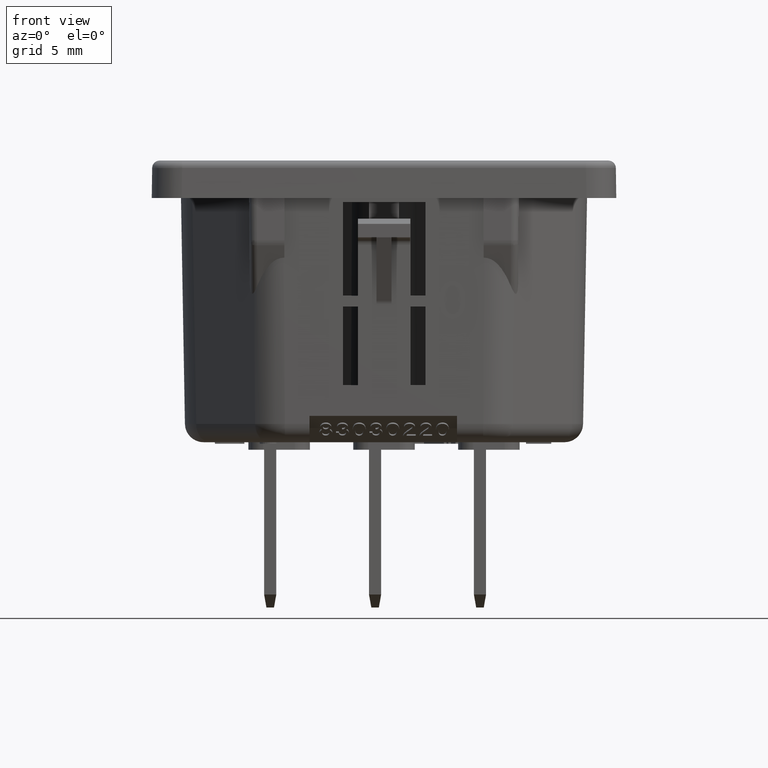
[diagram: clean part render]
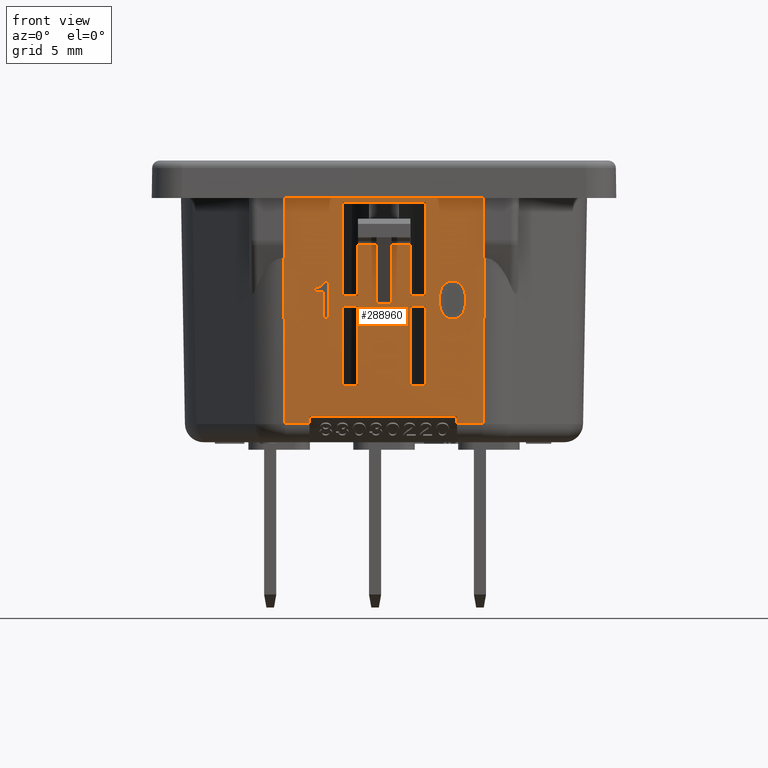
[diagram: same view with one face highlighted and labeled with its STEP entity id]
A machine part, front view. The second image highlights one B-rep face of the part: STEP entity #288960.
In plain terms, the highlighted planar face has unit normal (0, -0.9998, -0.0175).
Its self-contained STEP definition (entity closure, byte-faithful):
#29000=CARTESIAN_POINT('',(6.87138551330039,-0.0479941154363516,
9.07859570392953));
#29010=DIRECTION('',(-0.00749793555627765,0.999819589538164,
0.0174519150275998));
#29020=VECTOR('',#29010,1.);
#29030=LINE('',#29000,#29020);
#29040=CARTESIAN_POINT('',(6.78173497931519,11.9065444929835,
9.28726294167057));
#29050=VERTEX_POINT('',#29040);
#29060=CARTESIAN_POINT('',(6.6985651438478,22.9969079850167,
9.48084594735818));
#29070=VERTEX_POINT('',#29060);
#29080=EDGE_CURVE('',#29050,#29070,#29030,.T.);
#33220=CARTESIAN_POINT('',(6.74229300000001,22.9969079851629,
9.48084594736074));
#33230=VERTEX_POINT('',#33220);
#33470=CARTESIAN_POINT('',(6.74229300000001,26.97836,9.55034244750583));
#33480=VERTEX_POINT('',#33470);
#33510=CARTESIAN_POINT('',(6.74229300000001,0.,9.07943344429107));
#33520=DIRECTION('',(0.,0.999847695170775,0.0174524056132188));
#33530=VECTOR('',#33520,1.);
#33540=LINE('',#33510,#33530);
#33550=EDGE_CURVE('',#33230,#33480,#33540,.T.);
#49210=CARTESIAN_POINT('',(11.6446929983374,29.97836,9.60270763981715));
#49220=DIRECTION('',(-2.022048079185E-11,-0.999847695170775,
-0.0174524056132188));
#49230=VECTOR('',#49220,1.);
#49240=LINE('',#49210,#49230);
#49250=CARTESIAN_POINT('',(11.6446929981301,19.7283599995022,
9.42379323274476));
#49260=VERTEX_POINT('',#49250);
#49270=CARTESIAN_POINT('',(11.6446929980239,14.47836,9.33215414620862));
#49280=VERTEX_POINT('',#49270);
#49290=EDGE_CURVE('',#49260,#49280,#49240,.T.);
#61040=CARTESIAN_POINT('',(18.269693,12.4370572006822,9.29652307499131))
;
#61050=VERTEX_POINT('',#61040);
#61080=CARTESIAN_POINT('',(18.269693,0.,9.07943344429107));
#61090=DIRECTION('',(0.,0.999847695170775,0.0174524056132188));
#61100=VECTOR('',#61090,1.);
#61110=LINE('',#61080,#61100);
#61120=CARTESIAN_POINT('',(18.269693,11.9065444929835,9.28726294167057))
;
#61130=VERTEX_POINT('',#61120);
#61140=EDGE_CURVE('',#61130,#61050,#61110,.T.);
#62040=CARTESIAN_POINT('',(20.0076510206848,11.9065444929835,
9.28726294167057));
#62050=VERTEX_POINT('',#62040);
#62270=CARTESIAN_POINT('',(8.419693,0.,9.07943344429107));
#62280=DIRECTION('',(0.,0.999847695170775,0.0174524056132188));
#62290=VECTOR('',#62280,1.);
#62300=LINE('',#62270,#62290);
#62310=CARTESIAN_POINT('',(8.419693,11.9065444929835,9.28726294167057));
#62320=VERTEX_POINT('',#62310);
#62330=CARTESIAN_POINT('',(8.419693,12.4370572006822,9.29652307499131));
#62340=VERTEX_POINT('',#62330);
#62350=EDGE_CURVE('',#62320,#62340,#62300,.T.);
#63390=CARTESIAN_POINT('',(20.047092848351,26.97836,9.55034244750583));
#63400=VERTEX_POINT('',#63390);
#63430=CARTESIAN_POINT('',(0.,26.97836,9.55034244750583));
#63440=DIRECTION('',(-1.,0.,0.));
#63450=VECTOR('',#63440,1.);
#63460=LINE('',#63430,#63450);
#63470=EDGE_CURVE('',#63400,#33480,#63460,.T.);
#65490=CARTESIAN_POINT('',(0.,11.9065444929835,9.28726294167057));
#65500=DIRECTION('',(1.,0.,0.));
#65510=VECTOR('',#65500,1.);
#65520=LINE('',#65490,#65510);
#65530=EDGE_CURVE('',#61130,#62050,#65520,.T.);
#67200=EDGE_CURVE('',#29050,#62320,#65520,.T.);
#67370=CARTESIAN_POINT('',(16.1446929981301,19.7283599942885,
9.42379323265375));
#67380=VERTEX_POINT('',#67370);
#67530=CARTESIAN_POINT('',(15.1446929981301,19.7283599954471,
9.42379323267398));
#67540=VERTEX_POINT('',#67530);
#67570=CARTESIAN_POINT('',(40.392439779246,19.7283599661948,
9.42379323216338));
#67580=DIRECTION('',(-1.,1.15860723781929E-9,2.02235636072347E-11));
#67590=VECTOR('',#67580,1.);
#67600=LINE('',#67570,#67590);
#67610=EDGE_CURVE('',#67380,#67540,#67600,.T.);
#67790=CARTESIAN_POINT('',(0.,12.4370572006822,9.29652307499131));
#67800=DIRECTION('',(-1.,0.,0.));
#67810=VECTOR('',#67800,1.);
#67820=LINE('',#67790,#67810);
#67830=EDGE_CURVE('',#61050,#62340,#67820,.T.);
#76550=CARTESIAN_POINT('',(40.3924397791398,14.4783600000001,
9.33215414620863));
#76560=DIRECTION('',(1.,3.46944695195728E-15,6.05594190000325E-17));
#76570=VECTOR('',#76560,1.);
#76580=LINE('',#76550,#76570);
#76590=CARTESIAN_POINT('',(15.1446929980239,14.47836,9.33215414620862));
#76600=VERTEX_POINT('',#76590);
#76610=CARTESIAN_POINT('',(16.1446929980239,14.47836,9.33215414620862));
#76620=VERTEX_POINT('',#76610);
#76630=EDGE_CURVE('',#76600,#76620,#76580,.T.);
#77040=CARTESIAN_POINT('',(0.,22.9969079626194,9.48084594696724));
#77050=DIRECTION('',(1.,3.34359885149224E-9,5.83627322901094E-11));
#77060=VECTOR('',#77050,1.);
#77070=LINE('',#77040,#77060);
#77080=EDGE_CURVE('',#29070,#33230,#77070,.T.);
#77510=CARTESIAN_POINT('',(19.9180004866996,-0.0479941154363516,
9.07859570392953));
#77520=DIRECTION('',(0.00749793555627765,0.999819589538164,
0.0174519150275998));
#77530=VECTOR('',#77520,1.);
#77540=LINE('',#77510,#77530);
#77550=CARTESIAN_POINT('',(20.0908208561522,22.9969079850167,
9.48084594735818));
#77560=VERTEX_POINT('',#77550);
#77570=EDGE_CURVE('',#62050,#77560,#77540,.T.);
#78240=CARTESIAN_POINT('',(10.6446929980239,14.47836,9.33215414620862));
#78250=VERTEX_POINT('',#78240);
#78280=CARTESIAN_POINT('',(10.6446929983374,29.97836,9.60270763981716));
#78290=DIRECTION('',(2.0220775694841E-11,0.999847695170775,
0.0174524056132188));
#78300=VECTOR('',#78290,1.);
#78310=LINE('',#78280,#78300);
#78320=CARTESIAN_POINT('',(10.6446929981301,19.7283600006608,
9.42379323276498));
#78330=VERTEX_POINT('',#78320);
#78340=EDGE_CURVE('',#78250,#78330,#78310,.T.);
#205630=CARTESIAN_POINT('',(13.894692999399,19.9139644380714,
9.42703297011793));
#205640=VERTEX_POINT('',#205630);
#205900=CARTESIAN_POINT('',(13.894692999399,23.8570862028066,
9.49586041329038));
#205910=VERTEX_POINT('',#205900);
#205940=CARTESIAN_POINT('',(13.894692999399,0.,9.07943344429107));
#205950=DIRECTION('',(0.,0.999847695170775,0.0174524056132188));
#205960=VECTOR('',#205950,1.);
#205970=LINE('',#205940,#205960);
#205980=EDGE_CURVE('',#205640,#205910,#205970,.T.);
#206880=EDGE_CURVE('',#49260,#78330,#67600,.T.);
#258070=CARTESIAN_POINT('',(17.5709430013059,21.3492563936078,
9.45208608320945));
#258080=VERTEX_POINT('',#258070);
#258110=CARTESIAN_POINT('',(0.,14.3208792165582,9.32940530903853));
#258120=DIRECTION('',(-0.92845718243873,-0.371382871735178,
-0.00648251183318201));
#258130=VECTOR('',#258120,1.);
#258140=LINE('',#258110,#258130);
#258150=CARTESIAN_POINT('',(17.729693001379,21.4127563934249,
9.45319447977685));
#258160=VERTEX_POINT('',#258150);
#258170=EDGE_CURVE('',#258160,#258080,#258140,.T.);
#258460=CARTESIAN_POINT('',(15.1446929996903,20.4483599954471,
9.4363608788287));
#258470=VERTEX_POINT('',#258460);
#258500=CARTESIAN_POINT('',(15.1446929996903,0.,9.07943344429107));
#258510=DIRECTION('',(0.,0.999847695170775,0.0174524056132188));
#258520=VECTOR('',#258510,1.);
#258530=LINE('',#258500,#258520);
#258540=CARTESIAN_POINT('',(15.1446929996903,23.8570862028066,
9.49586041329038));
#258550=VERTEX_POINT('',#258540);
#258560=EDGE_CURVE('',#258470,#258550,#258530,.T.);
#260020=CARTESIAN_POINT('',(17.4756929986575,19.0632563936716,
9.41218380666933));
#260030=VERTEX_POINT('',#260020);
#260060=CARTESIAN_POINT('',(36.5389493477699,0.,9.07943344429107));
#260070=DIRECTION('',(0.70705292631986,-0.707052927972554,
-0.0123416541825235));
#260080=VECTOR('',#260070,1.);
#260090=LINE('',#260060,#260080);
#260100=CARTESIAN_POINT('',(17.3804429987676,19.1585063937842,
9.41384640152718));
#260110=VERTEX_POINT('',#260100);
#260120=EDGE_CURVE('',#260110,#260030,#260090,.T.);
#260420=CARTESIAN_POINT('',(17.7296929985098,18.9362563933751,
9.40996701352298));
#260430=VERTEX_POINT('',#260420);
#260460=CARTESIAN_POINT('',(0.,26.0281336167508,9.53375618507311));
#260470=DIRECTION('',(0.928457181577933,-0.371382873886515,
-0.00648251187073371));
#260480=VECTOR('',#260470,1.);
#260490=LINE('',#260460,#260480);
#260500=CARTESIAN_POINT('',(17.5709429985835,18.9997563935603,
9.4110754100968));
#260510=VERTEX_POINT('',#260500);
#260520=EDGE_CURVE('',#260510,#260430,#260490,.T.);
#260820=CARTESIAN_POINT('',(18.0789429984733,18.9045063929697,
9.40941281523061));
#260830=VERTEX_POINT('',#260820);
#260860=CARTESIAN_POINT('',(0.,18.9045064139161,9.40941281559623));
#260870=DIRECTION('',(1.,-1.15860723784272E-9,-2.02235636076437E-11));
#260880=VECTOR('',#260870,1.);
#260890=LINE('',#260860,#260880);
#260900=CARTESIAN_POINT('',(17.8566929984736,18.9045063932272,
9.4094128152351));
#260910=VERTEX_POINT('',#260900);
#260920=EDGE_CURVE('',#260910,#260830,#260890,.T.);
#261390=CARTESIAN_POINT('',(18.2059429985099,18.9362563928231,
9.40996701351335));
#261400=VERTEX_POINT('',#261390);
#261430=CARTESIAN_POINT('',(0.,14.3847706655155,9.33052053837577));
#261440=DIRECTION('',(0.970133806945002,0.242533450546902,
0.00423343692660621));
#261450=VECTOR('',#261440,1.);
#261460=LINE('',#261430,#261450);
#261470=EDGE_CURVE('',#260830,#261400,#261460,.T.);
#261700=CARTESIAN_POINT('',(17.1264430004227,20.5872563941056,
9.43878532437107));
#261710=VERTEX_POINT('',#261700);
#261740=CARTESIAN_POINT('',(13.6952335769594,0.,9.07943344429108));
#261750=DIRECTION('',(-0.164374626257937,-0.986247750521081,
-0.0172150177075505));
#261760=VECTOR('',#261750,1.);
#261770=LINE('',#261740,#261760);
#261780=CARTESIAN_POINT('',(17.1581930006437,20.7777563940744,
9.44211051408229));
#261790=VERTEX_POINT('',#261780);
#261800=EDGE_CURVE('',#261790,#261710,#261770,.T.);
#262100=CARTESIAN_POINT('',(17.1581929992458,19.57125639405,
9.42105097924066));
#262110=VERTEX_POINT('',#262100);
#262140=CARTESIAN_POINT('',(20.4200690415495,0.,9.07943344429107));
#262150=DIRECTION('',(0.164374623972571,-0.986247750901859,
-0.0172150177141971));
#262160=VECTOR('',#262150,1.);
#262170=LINE('',#262140,#262160);
#262180=CARTESIAN_POINT('',(17.1264429994666,19.7617563940901,
9.42437616895313));
#262190=VERTEX_POINT('',#262180);
#262200=EDGE_CURVE('',#262190,#262110,#262170,.T.);
#262500=CARTESIAN_POINT('',(17.0946929997976,20.0475063941331,
9.42936395352153));
#262510=VERTEX_POINT('',#262500);
#262540=CARTESIAN_POINT('',(17.0946929765704,0.,9.07943344429107));
#262550=DIRECTION('',(-1.15843077665156E-9,-0.999847695170775,
-0.0174524056132188));
#262560=VECTOR('',#262550,1.);
#262570=LINE('',#262540,#262560);
#262580=CARTESIAN_POINT('',(17.0946930000919,20.301506394139,
9.43379753980399));
#262590=VERTEX_POINT('',#262580);
#262600=EDGE_CURVE('',#262590,#262510,#262570,.T.);
#263250=CARTESIAN_POINT('',(17.2851929989148,19.285506393897,
9.41606319467033));
#263260=VERTEX_POINT('',#263250);
#263290=CARTESIAN_POINT('',(26.9279461677379,0.,9.07943344429108));
#263300=DIRECTION('',(0.447159101734528,-0.894318206077549,
-0.0156103816162577));
#263310=VECTOR('',#263300,1.);
#263320=LINE('',#263290,#263310);
#263330=CARTESIAN_POINT('',(17.2216929990618,19.4125063939733,
9.41827998781284));
#263340=VERTEX_POINT('',#263330);
#263350=EDGE_CURVE('',#263340,#263260,#263320,.T.);
#263650=CARTESIAN_POINT('',(17.221693000828,20.9365063940048,
9.44488150550755));
#263660=VERTEX_POINT('',#263650);
#263690=CARTESIAN_POINT('',(6.75343977371565,0.,9.07943344429107));
#263700=DIRECTION('',(-0.447159103806985,-0.894318205041636,
-0.0156103815981758));
#263710=VECTOR('',#263700,1.);
#263720=LINE('',#263690,#263710);
#263730=CARTESIAN_POINT('',(17.2851930009745,21.0635063939326,
9.44709829864747));
#263740=VERTEX_POINT('',#263730);
#263750=EDGE_CURVE('',#263740,#263660,#263720,.T.);
#264050=CARTESIAN_POINT('',(17.380443001122,21.1905063938253,
9.44931509178677));
#264060=VERTEX_POINT('',#264050);
#264090=CARTESIAN_POINT('',(0.,3.81006343262599,9.14593834574702));
#264100=DIRECTION('',(-0.707052927958503,-0.70705292633441,
-0.0123416541539296));
#264110=VECTOR('',#264100,1.);
#264120=LINE('',#264090,#264110);
#264130=CARTESIAN_POINT('',(17.4756930012324,21.2857563937169,
9.45097768664077));
#264140=VERTEX_POINT('',#264130);
#264150=EDGE_CURVE('',#264140,#264060,#264120,.T.);
#264450=CARTESIAN_POINT('',(17.8566930014162,21.4445063932785,
9.45374867805959));
#264460=VERTEX_POINT('',#264450);
#264490=CARTESIAN_POINT('',(0.,21.4445064139674,9.45374867842072));
#264500=DIRECTION('',(-1.,1.15860723784272E-9,2.02235636076437E-11));
#264510=VECTOR('',#264500,1.);
#264520=LINE('',#264490,#264510);
#264530=CARTESIAN_POINT('',(18.0789430014164,21.444506393021,
9.4537486780551));
#264540=VERTEX_POINT('',#264530);
#264550=EDGE_CURVE('',#264540,#264460,#264520,.T.);
#264780=CARTESIAN_POINT('',(10.6446929981447,20.4483600006608,
9.4363608789197));
#264790=VERTEX_POINT('',#264780);
#264820=CARTESIAN_POINT('',(10.6446929982711,26.69836,9.54545502955677))
;
#264830=VERTEX_POINT('',#264820);
#264840=EDGE_CURVE('',#264790,#264830,#78310,.T.);
#267460=CARTESIAN_POINT('',(40.392439779387,26.69836,9.54545502955677));
#267470=DIRECTION('',(-1.,7.88510671416449E-17,1.37635037072035E-18));
#267480=VECTOR('',#267470,1.);
#267490=LINE('',#267460,#267480);
#267500=CARTESIAN_POINT('',(16.1446929982711,26.69836,9.54545502955677))
;
#267510=VERTEX_POINT('',#267500);
#267520=EDGE_CURVE('',#267510,#264830,#267490,.T.);
#268060=CARTESIAN_POINT('',(11.6446929987702,23.8570862028066,
9.49586041329038));
#268070=VERTEX_POINT('',#268060);
#268120=CARTESIAN_POINT('',(11.6446929987702,0.,9.07943344429107));
#268130=DIRECTION('',(0.,0.999847695170775,0.0174524056132188));
#268140=VECTOR('',#268130,1.);
#268150=LINE('',#268120,#268140);
#268160=CARTESIAN_POINT('',(11.6446929987702,20.4483599995022,
9.43636087889948));
#268170=VERTEX_POINT('',#268160);
#268180=EDGE_CURVE('',#268170,#268070,#268150,.T.);
#269100=CARTESIAN_POINT('',(12.8946929998295,19.9139644380714,
9.42703297011793));
#269110=VERTEX_POINT('',#269100);
#269160=CARTESIAN_POINT('',(12.8946929998295,0.,9.07943344429107));
#269170=DIRECTION('',(0.,0.999847695170775,0.0174524056132188));
#269180=VECTOR('',#269170,1.);
#269190=LINE('',#269160,#269180);
#269200=CARTESIAN_POINT('',(12.8946929998295,23.8570862028066,
9.49586041329038));
#269210=VERTEX_POINT('',#269200);
#269220=EDGE_CURVE('',#269110,#269210,#269190,.T.);
#269630=CARTESIAN_POINT('',(14.8389700436436,0.,9.07943344429108));
#269640=DIRECTION('',(-0.11041491303585,-0.993734206852685,
-0.0173456942827288));
#269650=VECTOR('',#269640,1.);
#269660=LINE('',#269630,#269650);
#269670=EDGE_CURVE('',#261710,#262590,#269660,.T.);
#269850=CARTESIAN_POINT('',(19.3221936866979,0.,9.07943344429107));
#269860=DIRECTION('',(0.110414910733146,-0.993734207108464,
-0.0173456942871934));
#269870=VECTOR('',#269860,1.);
#269880=LINE('',#269850,#269870);
#269890=EDGE_CURVE('',#262510,#262190,#269880,.T.);
#270070=CARTESIAN_POINT('',(31.749322759132,0.,9.07943344429107));
#270080=DIRECTION('',(0.599941509200639,-0.79992201421452,
-0.0139626900361362));
#270090=VECTOR('',#270080,1.);
#270100=LINE('',#270070,#270090);
#270110=EDGE_CURVE('',#263260,#260110,#270100,.T.);
#270340=CARTESIAN_POINT('',(18.6504430009748,21.0635063923512,
9.44709829861986));
#270350=VERTEX_POINT('',#270340);
#270380=CARTESIAN_POINT('',(29.182196166432,0.,9.07943344429107));
#270390=DIRECTION('',(-0.447159101734527,0.894318206077549,
0.0156103816162577));
#270400=VECTOR('',#270390,1.);
#270410=LINE('',#270380,#270400);
#270420=CARTESIAN_POINT('',(18.7139430008277,20.9365063922749,
9.44488150547735));
#270430=VERTEX_POINT('',#270420);
#270440=EDGE_CURVE('',#270430,#270350,#270410,.T.);
#270690=CARTESIAN_POINT('',(0.,9.63529442190612,9.2476181260842));
#270700=DIRECTION('',(-0.832011296414313,-0.554674196228347,
-0.00968187365187631));
#270710=VECTOR('',#270700,1.);
#270720=LINE('',#270690,#270710);
#270730=EDGE_CURVE('',#258080,#264140,#270720,.T.);
#270960=CARTESIAN_POINT('',(18.364693001306,21.3492563926879,
9.4520860831934));
#270970=VERTEX_POINT('',#270960);
#271000=CARTESIAN_POINT('',(0.,33.5923850912069,9.66579067945683));
#271010=DIRECTION('',(-0.832011295128743,0.554674198156115,
0.00968187368552562));
#271020=VECTOR('',#271010,1.);
#271030=LINE('',#271000,#271020);
#271040=CARTESIAN_POINT('',(18.4599430012323,21.2857563925764,
9.45097768662086));
#271050=VERTEX_POINT('',#271040);
#271060=EDGE_CURVE('',#271050,#270970,#271030,.T.);
#271310=CARTESIAN_POINT('',(0.,25.9642421657219,9.53264095569972));
#271320=DIRECTION('',(-0.970133806382841,0.242533452794861,
0.00423343696584445));
#271330=VECTOR('',#271320,1.);
#271340=LINE('',#271310,#271330);
#271350=CARTESIAN_POINT('',(18.2059430013789,21.4127563928734,
9.45319447976722));
#271360=VERTEX_POINT('',#271350);
#271370=EDGE_CURVE('',#271360,#264540,#271340,.T.);
#271620=CARTESIAN_POINT('',(0.,16.9803331648163,9.37582624818642));
#271630=DIRECTION('',(-0.970133806945004,-0.242533450546893,
-0.00423343692660604));
#271640=VECTOR('',#271630,1.);
#271650=LINE('',#271620,#271640);
#271660=EDGE_CURVE('',#264460,#258160,#271650,.T.);
#271840=CARTESIAN_POINT('',(27.08854552943,0.,9.07943344429108));
#271850=DIRECTION('',(-0.371341911154801,0.928354781025009,
0.0162044922138386));
#271860=VECTOR('',#271850,1.);
#271870=LINE('',#271840,#271860);
#271880=CARTESIAN_POINT('',(18.7774430006436,20.7777563921986,
9.44211051404955));
#271890=VERTEX_POINT('',#271880);
#271900=EDGE_CURVE('',#271890,#270430,#271870,.T.);
#272200=CARTESIAN_POINT('',(18.5551929987679,19.1585063924233,
9.41384640150343));
#272210=VERTEX_POINT('',#272200);
#272240=CARTESIAN_POINT('',(0.,0.603313436276508,9.08996431899595));
#272250=DIRECTION('',(0.707052927958502,0.707052926334411,
0.0123416541539297));
#272260=VECTOR('',#272250,1.);
#272270=LINE('',#272240,#272260);
#272280=CARTESIAN_POINT('',(18.4599429986571,19.0632563925314,
9.41218380664943));
#272290=VERTEX_POINT('',#272280);
#272300=EDGE_CURVE('',#272290,#272210,#272270,.T.);
#272600=CARTESIAN_POINT('',(18.6504429989146,19.285506392315,
9.41606319464272));
#272610=VERTEX_POINT('',#272600);
#272640=CARTESIAN_POINT('',(4.1863131700578,0.,9.07943344429108));
#272650=DIRECTION('',(0.599941511054434,0.799922012824597,
0.013962690011875));
#272660=VECTOR('',#272650,1.);
#272670=LINE('',#272640,#272660);
#272680=EDGE_CURVE('',#272210,#272610,#272670,.T.);
#272860=CARTESIAN_POINT('',(0.,6.75662775740463,9.19737081492193));
#272870=DIRECTION('',(0.832011296414311,0.55467419622835,
0.00968187365187636));
#272880=VECTOR('',#272870,1.);
#272890=LINE('',#272860,#272880);
#272900=CARTESIAN_POINT('',(18.3646929985838,18.9997563926406,
9.41107541008075));
#272910=VERTEX_POINT('',#272900);
#272920=EDGE_CURVE('',#272910,#272290,#272890,.T.);
#273220=CARTESIAN_POINT('',(18.5551930011219,21.1905063924642,
9.44931509176302));
#273230=VERTEX_POINT('',#273220);
#273260=CARTESIAN_POINT('',(34.4480727567869,0.,9.07943344429108));
#273270=DIRECTION('',(-0.599941509200639,0.79992201421452,
0.0139626900361362));
#273280=VECTOR('',#273270,1.);
#273290=LINE('',#273260,#273280);
#273300=EDGE_CURVE('',#270350,#273230,#273290,.T.);
#273480=CARTESIAN_POINT('',(0.,11.6538792177404,9.2828526530944));
#273490=DIRECTION('',(0.928457182438733,0.371382871735171,
0.00648251183318187));
#273500=VECTOR('',#273490,1.);
#273510=LINE('',#273480,#273500);
#273520=EDGE_CURVE('',#261400,#272910,#273510,.T.);
#273700=CARTESIAN_POINT('',(0.,23.3686796649178,9.48733524586283));
#273710=DIRECTION('',(0.970133806382838,-0.242533452794871,
-0.00423343696584463));
#273720=VECTOR('',#273710,1.);
#273730=LINE('',#273700,#273720);
#273740=EDGE_CURVE('',#260430,#260910,#273730,.T.);
#273920=CARTESIAN_POINT('',(1.48756316771282,0.,9.07943344429107));
#273930=DIRECTION('',(-0.599941511054431,-0.799922012824599,
-0.013962690011875));
#273940=VECTOR('',#273930,1.);
#273950=LINE('',#273920,#273940);
#273960=EDGE_CURVE('',#264060,#263740,#273950,.T.);
#274140=CARTESIAN_POINT('',(8.84709041525707,0.,9.07943344429108));
#274150=DIRECTION('',(-0.371341913306086,-0.928354780164756,
-0.0162044921988229));
#274160=VECTOR('',#274150,1.);
#274170=LINE('',#274140,#274160);
#274180=EDGE_CURVE('',#263660,#261790,#274170,.T.);
#274360=CARTESIAN_POINT('',(0.,30.7137184222585,9.61554336821693));
#274370=DIRECTION('',(0.832011295128741,-0.554674198156118,
-0.00968187368552565));
#274380=VECTOR('',#274370,1.);
#274390=LINE('',#274360,#274380);
#274400=EDGE_CURVE('',#260030,#260510,#274390,.T.);
#274580=CARTESIAN_POINT('',(24.986695530404,0.,9.07943344429107));
#274590=DIRECTION('',(0.371341911154798,-0.92835478102501,
-0.0162044922138386));
#274600=VECTOR('',#274590,1.);
#274610=LINE('',#274580,#274600);
#274620=EDGE_CURVE('',#262110,#263340,#274610,.T.);
#274910=CARTESIAN_POINT('',(20.047092848351,22.9969079851629,
9.48084594736074));
#274920=VERTEX_POINT('',#274910);
#274950=CARTESIAN_POINT('',(20.047092848351,0.,9.07943344429107));
#274960=DIRECTION('',(0.,0.999847695170775,0.0174524056132188));
#274970=VECTOR('',#274960,1.);
#274980=LINE('',#274950,#274970);
#274990=EDGE_CURVE('',#274920,#63400,#274980,.T.);
#275150=CARTESIAN_POINT('',(9.31369300291716,21.2222563962809,
9.44986929011493));
#275160=VERTEX_POINT('',#275150);
#275310=CARTESIAN_POINT('',(9.21844300280669,21.1270063963892,
9.44820669526094));
#275320=VERTEX_POINT('',#275310);
#275350=CARTESIAN_POINT('',(0.,11.9085634147572,9.28729818207955));
#275360=DIRECTION('',(-0.707052927958505,-0.707052926334408,
-0.0123416541539296));
#275370=VECTOR('',#275360,1.);
#275380=LINE('',#275350,#275370);
#275390=EDGE_CURVE('',#275160,#275320,#275380,.T.);
#275620=CARTESIAN_POINT('',(9.09144300273327,21.0635063965351,
9.44709829869289));
#275630=VERTEX_POINT('',#275620);
#275660=CARTESIAN_POINT('',(0.,16.5177849082433,9.36775243871685));
#275670=DIRECTION('',(-0.894399941418202,-0.447199969422825,
-0.00780590413348214));
#275680=VECTOR('',#275670,1.);
#275690=LINE('',#275660,#275680);
#275700=EDGE_CURVE('',#275320,#275630,#275690,.T.);
#275930=CARTESIAN_POINT('',(8.99619300269636,21.0317563966448,
9.44654410040951));
#275940=VERTEX_POINT('',#275930);
#275970=CARTESIAN_POINT('',(0.,18.0330254072666,9.39420105875994));
#275980=DIRECTION('',(-0.948668846538915,-0.316222947631436,
-0.00551969182199178));
#275990=VECTOR('',#275980,1.);
#276000=LINE('',#275970,#275990);
#276010=EDGE_CURVE('',#275630,#275940,#276000,.T.);
#276120=CARTESIAN_POINT('',(22.2404023745313,0.,9.07943344429107));
#276130=DIRECTION('',(-0.16437462397257,0.986247750901859,
0.0172150177141971));
#276140=VECTOR('',#276130,1.);
#276150=LINE('',#276120,#276140);
#276160=CARTESIAN_POINT('',(18.8091930004232,20.5872563921561,
9.43878532433704));
#276170=VERTEX_POINT('',#276160);
#276180=EDGE_CURVE('',#276170,#271890,#276150,.T.);
#278250=CARTESIAN_POINT('',(9.37719300236533,20.7460063961976,
9.44155631583405));
#278260=VERTEX_POINT('',#278250);
#278290=CARTESIAN_POINT('',(0.,20.7460064070621,9.44155631602369));
#278300=DIRECTION('',(1.,-1.15860723784272E-9,-2.02235636076437E-11));
#278310=VECTOR('',#278300,1.);
#278320=LINE('',#278290,#278310);
#278330=CARTESIAN_POINT('',(8.77394300236532,20.7460063968965,
9.44155631584625));
#278340=VERTEX_POINT('',#278330);
#278350=EDGE_CURVE('',#278340,#278260,#278320,.T.);
#278510=CARTESIAN_POINT('',(8.77394297832885,0.,9.07943344429107));
#278520=DIRECTION('',(-1.15843077665156E-9,-0.999847695170775,
-0.0174524056132188));
#278530=VECTOR('',#278520,1.);
#278540=LINE('',#278510,#278530);
#278550=CARTESIAN_POINT('',(8.77394300265961,21.0000063969017,
9.4459899021287));
#278560=VERTEX_POINT('',#278550);
#278570=EDGE_CURVE('',#278560,#278340,#278540,.T.);
#278950=CARTESIAN_POINT('',(8.83744300265953,21.0000063968281,
9.44598990212742));
#278960=VERTEX_POINT('',#278950);
#278990=CARTESIAN_POINT('',(0.,19.2325178069091,9.41513827548769));
#279000=DIRECTION('',(-0.980574930533373,-0.196114984929096,
-0.00342319963364848));
#279010=VECTOR('',#279000,1.);
#279020=LINE('',#278990,#279010);
#279030=EDGE_CURVE('',#275940,#278960,#279020,.T.);
#279130=CARTESIAN_POINT('',(0.,21.0000064070672,9.44598990230614));
#279140=DIRECTION('',(-1.,1.15860723784272E-9,2.02235636076437E-11));
#279150=VECTOR('',#279140,1.);
#279160=LINE('',#279130,#279150);
#279170=EDGE_CURVE('',#278960,#278560,#279160,.T.);
#279350=CARTESIAN_POINT('',(2.29252417700001,0.,9.07943344429107));
#279360=DIRECTION('',(-0.316184419405546,-0.948553254572484,
-0.0165570578644083));
#279370=VECTOR('',#279360,1.);
#279380=LINE('',#279350,#279370);
#279390=CARTESIAN_POINT('',(9.44069300317461,21.4445063961382,
9.45374867810951));
#279400=VERTEX_POINT('',#279390);
#279410=CARTESIAN_POINT('',(9.40894300306421,21.349256396173,
9.45208608325423));
#279420=VERTEX_POINT('',#279410);
#279430=EDGE_CURVE('',#279400,#279420,#279380,.T.);
#279830=CARTESIAN_POINT('',(-6.60299933239075,0.,9.07943344429108));
#279840=DIRECTION('',(-0.599941511054433,-0.799922012824598,
-0.013962690011875));
#279850=VECTOR('',#279840,1.);
#279860=LINE('',#279830,#279850);
#279870=EDGE_CURVE('',#279420,#275160,#279860,.T.);
#280040=CARTESIAN_POINT('',(0.,22.9969080521923,9.48084594853074));
#280050=DIRECTION('',(-1.,3.34359885149224E-9,5.83627322901094E-11));
#280060=VECTOR('',#280050,1.);
#280070=LINE('',#280040,#280060);
#280080=EDGE_CURVE('',#77560,#274920,#280070,.T.);
#285330=CARTESIAN_POINT('',(21.0966659086917,0.,9.07943344429107));
#285340=DIRECTION('',(-0.110414910733146,0.993734207108464,
0.0173456942871934));
#285350=VECTOR('',#285340,1.);
#285360=LINE('',#285330,#285350);
#285370=CARTESIAN_POINT('',(18.8409430000919,20.3015063921153,
9.43379753976867));
#285380=VERTEX_POINT('',#285370);
#285390=EDGE_CURVE('',#285380,#276170,#285360,.T.);
#285510=CARTESIAN_POINT('',(-1.85530699946041,11.7102118293765,
9.28383594244164));
#285520=DIRECTION('',(0.,-0.0174524056132188,0.999847695170775));
#285530=DIRECTION('',(3.23117426778526E-27,-0.999847695170775,
-0.0174524056132187));
#285540=AXIS2_PLACEMENT_3D('',#285510,#285520,#285530);
#285550=PLANE('',#285540);
#286870=CARTESIAN_POINT('',(0.,21.4445064070763,9.45374867830043));
#286880=DIRECTION('',(-1.,1.15860723784272E-9,2.02235636076437E-11));
#286890=VECTOR('',#286880,1.);
#286900=LINE('',#286870,#286890);
#286910=CARTESIAN_POINT('',(9.69469300317459,21.444506395844,
9.45374867810437));
#286920=VERTEX_POINT('',#286910);
#286930=EDGE_CURVE('',#286920,#279400,#286900,.T.);
#286940=ORIENTED_EDGE('',*,*,#286930,.F.);
#286950=ORIENTED_EDGE('',*,*,#279430,.F.);
#286960=ORIENTED_EDGE('',*,*,#279870,.F.);
#286970=ORIENTED_EDGE('',*,*,#275390,.F.);
#286980=ORIENTED_EDGE('',*,*,#275700,.F.);
#286990=ORIENTED_EDGE('',*,*,#276010,.F.);
#287000=ORIENTED_EDGE('',*,*,#279030,.F.);
#287010=ORIENTED_EDGE('',*,*,#279170,.F.);
#287020=ORIENTED_EDGE('',*,*,#278570,.F.);
#287030=ORIENTED_EDGE('',*,*,#278350,.F.);
#287040=CARTESIAN_POINT('',(9.37719297832885,0.,9.07943344429107));
#287050=DIRECTION('',(-1.15843077665156E-9,-0.999847695170775,
-0.0174524056132188));
#287060=VECTOR('',#287050,1.);
#287070=LINE('',#287040,#287060);
#287080=CARTESIAN_POINT('',(9.37719300023175,18.9045063961604,
9.4094128152863));
#287090=VERTEX_POINT('',#287080);
#287100=EDGE_CURVE('',#278260,#287090,#287070,.T.);
#287110=ORIENTED_EDGE('',*,*,#287100,.F.);
#287120=CARTESIAN_POINT('',(0.,18.9045064070249,9.40941281547594));
#287130=DIRECTION('',(1.,-1.15860723784272E-9,-2.02235636076437E-11));
#287140=VECTOR('',#287130,1.);
#287150=LINE('',#287120,#287140);
#287160=CARTESIAN_POINT('',(9.69469300023172,18.9045063957926,
9.40941281527988));
#287170=VERTEX_POINT('',#287160);
#287180=EDGE_CURVE('',#287090,#287170,#287150,.T.);
#287190=ORIENTED_EDGE('',*,*,#287180,.F.);
#287200=CARTESIAN_POINT('',(9.69469297832883,0.,9.07943344429107));
#287210=DIRECTION('',(1.15843077665156E-9,0.999847695170775,
0.0174524056132188));
#287220=VECTOR('',#287210,1.);
#287230=LINE('',#287200,#287220);
#287240=EDGE_CURVE('',#287170,#286920,#287230,.T.);
#287250=ORIENTED_EDGE('',*,*,#287240,.F.);
#287260=EDGE_LOOP('',(#287250,#287190,#287110,#287030,#287020,#287010,
#287000,#286990,#286980,#286970,#286960,#286950,#286940));
#287270=FACE_BOUND('',#287260,.T.);
#287280=ORIENTED_EDGE('',*,*,#269890,.F.);
#287290=ORIENTED_EDGE('',*,*,#262200,.F.);
#287300=ORIENTED_EDGE('',*,*,#274620,.F.);
#287310=ORIENTED_EDGE('',*,*,#263350,.F.);
#287320=ORIENTED_EDGE('',*,*,#270110,.F.);
#287330=ORIENTED_EDGE('',*,*,#260120,.F.);
#287340=ORIENTED_EDGE('',*,*,#274400,.F.);
#287350=ORIENTED_EDGE('',*,*,#260520,.F.);
#287360=ORIENTED_EDGE('',*,*,#273740,.F.);
#287370=ORIENTED_EDGE('',*,*,#260920,.F.);
#287380=ORIENTED_EDGE('',*,*,#261470,.F.);
#287390=ORIENTED_EDGE('',*,*,#273520,.F.);
#287400=ORIENTED_EDGE('',*,*,#272920,.F.);
#287410=ORIENTED_EDGE('',*,*,#272300,.F.);
#287420=ORIENTED_EDGE('',*,*,#272680,.F.);
#287430=CARTESIAN_POINT('',(9.00768977502175,0.,9.07943344429108));
#287440=DIRECTION('',(0.447159103806978,0.89431820504164,
0.0156103815981759));
#287450=VECTOR('',#287440,1.);
#287460=LINE('',#287430,#287450);
#287470=CARTESIAN_POINT('',(18.7139429990622,19.4125063922449,
9.41827998778268));
#287480=VERTEX_POINT('',#287470);
#287490=EDGE_CURVE('',#272610,#287480,#287460,.T.);
#287500=ORIENTED_EDGE('',*,*,#287490,.F.);
#287510=CARTESIAN_POINT('',(10.9489404162311,0.,9.07943344429107));
#287520=DIRECTION('',(0.371341913306088,0.928354780164756,
0.0162044921988229));
#287530=VECTOR('',#287520,1.);
#287540=LINE('',#287510,#287530);
#287550=CARTESIAN_POINT('',(18.7774429992458,19.5712563921738,
9.42105097920791));
#287560=VERTEX_POINT('',#287550);
#287570=EDGE_CURVE('',#287480,#287560,#287540,.T.);
#287580=ORIENTED_EDGE('',*,*,#287570,.F.);
#287590=CARTESIAN_POINT('',(15.5155669106442,0.,9.07943344429107));
#287600=DIRECTION('',(0.164374626257936,0.986247750521081,
0.0172150177075505));
#287610=VECTOR('',#287600,1.);
#287620=LINE('',#287590,#287610);
#287630=CARTESIAN_POINT('',(18.8091929994665,19.7617563921407,
9.4243761689191));
#287640=VERTEX_POINT('',#287630);
#287650=EDGE_CURVE('',#287560,#287640,#287620,.T.);
#287660=ORIENTED_EDGE('',*,*,#287650,.F.);
#287670=CARTESIAN_POINT('',(16.6134422660943,0.,9.07943344429108));
#287680=DIRECTION('',(0.11041491303585,0.993734206852685,
0.0173456942827288));
#287690=VECTOR('',#287680,1.);
#287700=LINE('',#287670,#287690);
#287710=CARTESIAN_POINT('',(18.8409429997976,20.0475063921101,
9.42936395348622));
#287720=VERTEX_POINT('',#287710);
#287730=EDGE_CURVE('',#287640,#287720,#287700,.T.);
#287740=ORIENTED_EDGE('',*,*,#287730,.F.);
#287750=CARTESIAN_POINT('',(18.8409429765704,0.,9.07943344429107));
#287760=DIRECTION('',(1.15843077665156E-9,0.999847695170775,
0.0174524056132188));
#287770=VECTOR('',#287760,1.);
#287780=LINE('',#287750,#287770);
#287790=EDGE_CURVE('',#287720,#285380,#287780,.T.);
#287800=ORIENTED_EDGE('',*,*,#287790,.F.);
#287810=ORIENTED_EDGE('',*,*,#285390,.F.);
#287820=ORIENTED_EDGE('',*,*,#276180,.F.);
#287830=ORIENTED_EDGE('',*,*,#271900,.F.);
#287840=ORIENTED_EDGE('',*,*,#270440,.F.);
#287850=ORIENTED_EDGE('',*,*,#273300,.F.);
#287860=CARTESIAN_POINT('',(39.7456993440544,0.,9.07943344429108));
#287870=DIRECTION('',(-0.707052926319859,0.707052927972555,
0.0123416541825235));
#287880=VECTOR('',#287870,1.);
#287890=LINE('',#287860,#287880);
#287900=EDGE_CURVE('',#273230,#271050,#287890,.T.);
#287910=ORIENTED_EDGE('',*,*,#287900,.F.);
#287920=ORIENTED_EDGE('',*,*,#271060,.F.);
#287930=CARTESIAN_POINT('',(0.,28.6951336180409,9.5803088410604));
#287940=DIRECTION('',(-0.928457181577931,0.371382873886521,
0.00648251187073382));
#287950=VECTOR('',#287940,1.);
#287960=LINE('',#287930,#287950);
#287970=EDGE_CURVE('',#270970,#271360,#287960,.T.);
#287980=ORIENTED_EDGE('',*,*,#287970,.F.);
#287990=ORIENTED_EDGE('',*,*,#271370,.F.);
#288000=ORIENTED_EDGE('',*,*,#264550,.F.);
#288010=ORIENTED_EDGE('',*,*,#271660,.F.);
#288020=ORIENTED_EDGE('',*,*,#258170,.F.);
#288030=ORIENTED_EDGE('',*,*,#270730,.F.);
#288040=ORIENTED_EDGE('',*,*,#264150,.F.);
#288050=ORIENTED_EDGE('',*,*,#273960,.F.);
#288060=ORIENTED_EDGE('',*,*,#263750,.F.);
#288070=ORIENTED_EDGE('',*,*,#274180,.F.);
#288080=ORIENTED_EDGE('',*,*,#261800,.F.);
#288090=ORIENTED_EDGE('',*,*,#269670,.F.);
#288100=ORIENTED_EDGE('',*,*,#262600,.F.);
#288110=EDGE_LOOP('',(#288100,#288090,#288080,#288070,#288060,#288050,
#288040,#288030,#288020,#288010,#288000,#287990,#287980,#287920,#287910,
#287850,#287840,#287830,#287820,#287810,#287800,#287740,#287660,#287580,
#287500,#287420,#287410,#287400,#287390,#287380,#287370,#287360,#287350,
#287340,#287330,#287320,#287310,#287300,#287290,#287280));
#288120=FACE_BOUND('',#288110,.T.);
#288130=ORIENTED_EDGE('',*,*,#269220,.T.);
#288140=CARTESIAN_POINT('',(0.,19.9139644380714,9.42703297011793));
#288150=DIRECTION('',(1.,0.,0.));
#288160=VECTOR('',#288150,1.);
#288170=LINE('',#288140,#288160);
#288180=EDGE_CURVE('',#269110,#205640,#288170,.T.);
#288190=ORIENTED_EDGE('',*,*,#288180,.F.);
#288200=ORIENTED_EDGE('',*,*,#205980,.F.);
#288210=CARTESIAN_POINT('',(0.,23.8570862028066,9.49586041329038));
#288220=DIRECTION('',(1.,0.,0.));
#288230=VECTOR('',#288220,1.);
#288240=LINE('',#288210,#288230);
#288250=EDGE_CURVE('',#205910,#258550,#288240,.T.);
#288260=ORIENTED_EDGE('',*,*,#288250,.F.);
#288270=ORIENTED_EDGE('',*,*,#258560,.T.);
#288280=CARTESIAN_POINT('',(40.3924397792606,20.4483599661949,
9.4363608783181));
#288290=DIRECTION('',(1.,-1.15860723781929E-9,-2.02235636072347E-11));
#288300=VECTOR('',#288290,1.);
#288310=LINE('',#288280,#288300);
#288320=CARTESIAN_POINT('',(16.1446929981447,20.4483599942885,
9.43636087880847));
#288330=VERTEX_POINT('',#288320);
#288340=EDGE_CURVE('',#258470,#288330,#288310,.T.);
#288350=ORIENTED_EDGE('',*,*,#288340,.F.);
#288360=CARTESIAN_POINT('',(16.1446929983374,29.97836,9.60270763981716))
;
#288370=DIRECTION('',(2.02201858888591E-11,0.999847695170775,
0.0174524056132188));
#288380=VECTOR('',#288370,1.);
#288390=LINE('',#288360,#288380);
#288400=EDGE_CURVE('',#288330,#267510,#288390,.T.);
#288410=ORIENTED_EDGE('',*,*,#288400,.F.);
#288420=ORIENTED_EDGE('',*,*,#267520,.F.);
#288430=ORIENTED_EDGE('',*,*,#264840,.T.);
#288440=CARTESIAN_POINT('',(40.3924397792606,20.4483599661949,
9.4363608783181));
#288450=DIRECTION('',(1.,-1.15860723781929E-9,-2.02235636072347E-11));
#288460=VECTOR('',#288450,1.);
#288470=LINE('',#288440,#288460);
#288480=EDGE_CURVE('',#264790,#268170,#288470,.T.);
#288490=ORIENTED_EDGE('',*,*,#288480,.F.);
#288500=ORIENTED_EDGE('',*,*,#268180,.F.);
#288510=CARTESIAN_POINT('',(0.,23.8570862028066,9.49586041329038));
#288520=DIRECTION('',(1.,0.,0.));
#288530=VECTOR('',#288520,1.);
#288540=LINE('',#288510,#288530);
#288550=EDGE_CURVE('',#268070,#269210,#288540,.T.);
#288560=ORIENTED_EDGE('',*,*,#288550,.F.);
#288570=EDGE_LOOP('',(#288560,#288500,#288490,#288430,#288420,#288410,
#288350,#288270,#288260,#288200,#288190,#288130));
#288580=FACE_BOUND('',#288570,.T.);
#288590=ORIENTED_EDGE('',*,*,#76630,.F.);
#288600=EDGE_CURVE('',#76620,#67380,#288390,.T.);
#288610=ORIENTED_EDGE('',*,*,#288600,.F.);
#288620=ORIENTED_EDGE('',*,*,#67610,.F.);
#288630=CARTESIAN_POINT('',(15.1446929983374,29.97836,9.60270763981716))
;
#288640=DIRECTION('',(-2.022048079185E-11,-0.999847695170775,
-0.0174524056132188));
#288650=VECTOR('',#288640,1.);
#288660=LINE('',#288630,#288650);
#288670=EDGE_CURVE('',#67540,#76600,#288660,.T.);
#288680=ORIENTED_EDGE('',*,*,#288670,.F.);
#288690=EDGE_LOOP('',(#288680,#288620,#288610,#288590));
#288700=FACE_BOUND('',#288690,.T.);
#288710=ORIENTED_EDGE('',*,*,#206880,.F.);
#288720=ORIENTED_EDGE('',*,*,#78340,.T.);
#288730=CARTESIAN_POINT('',(40.3924397791398,14.4783599999999,
9.33215414620863));
#288740=DIRECTION('',(-1.,3.46944695195728E-15,6.05594187932373E-17));
#288750=VECTOR('',#288740,1.);
#288760=LINE('',#288730,#288750);
#288770=EDGE_CURVE('',#49280,#78250,#288760,.T.);
#288780=ORIENTED_EDGE('',*,*,#288770,.T.);
#288790=ORIENTED_EDGE('',*,*,#49290,.T.);
#288800=EDGE_LOOP('',(#288790,#288780,#288720,#288710));
#288810=FACE_BOUND('',#288800,.T.);
#288820=ORIENTED_EDGE('',*,*,#65530,.T.);
#288830=ORIENTED_EDGE('',*,*,#61140,.F.);
#288840=ORIENTED_EDGE('',*,*,#67830,.F.);
#288850=ORIENTED_EDGE('',*,*,#62350,.T.);
#288860=ORIENTED_EDGE('',*,*,#67200,.T.);
#288870=ORIENTED_EDGE('',*,*,#29080,.F.);
#288880=ORIENTED_EDGE('',*,*,#77080,.F.);
#288890=ORIENTED_EDGE('',*,*,#33550,.F.);
#288900=ORIENTED_EDGE('',*,*,#63470,.T.);
#288910=ORIENTED_EDGE('',*,*,#274990,.T.);
#288920=ORIENTED_EDGE('',*,*,#280080,.T.);
#288930=ORIENTED_EDGE('',*,*,#77570,.T.);
#288940=EDGE_LOOP('',(#288930,#288920,#288910,#288900,#288890,#288880,
#288870,#288860,#288850,#288840,#288830,#288820));
#288950=FACE_OUTER_BOUND('',#288940,.T.);
#288960=ADVANCED_FACE('',(#287270,#288120,#288580,#288700,#288810,
#288950),#285550,.T.);